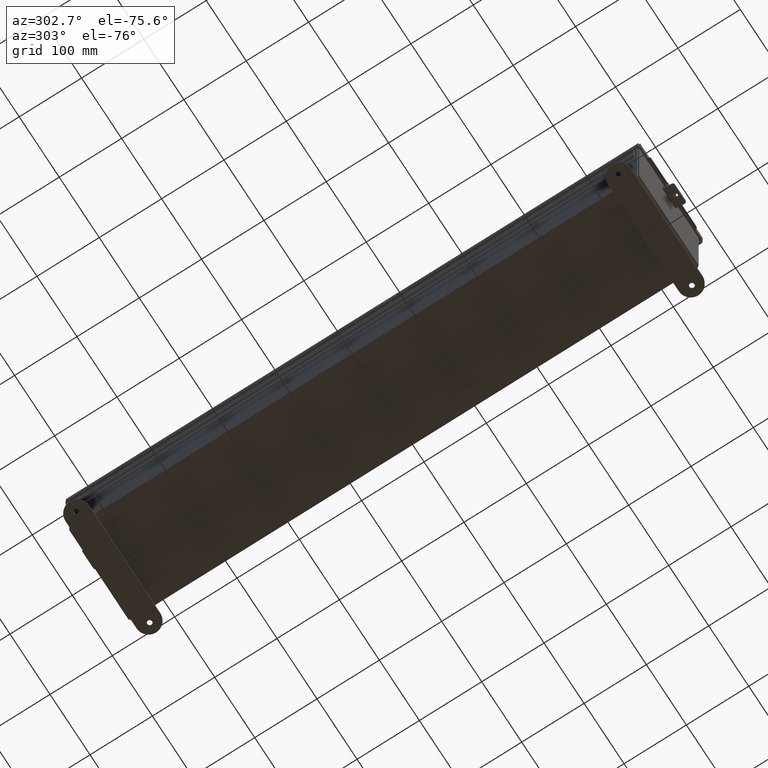
[diagram: clean part render]
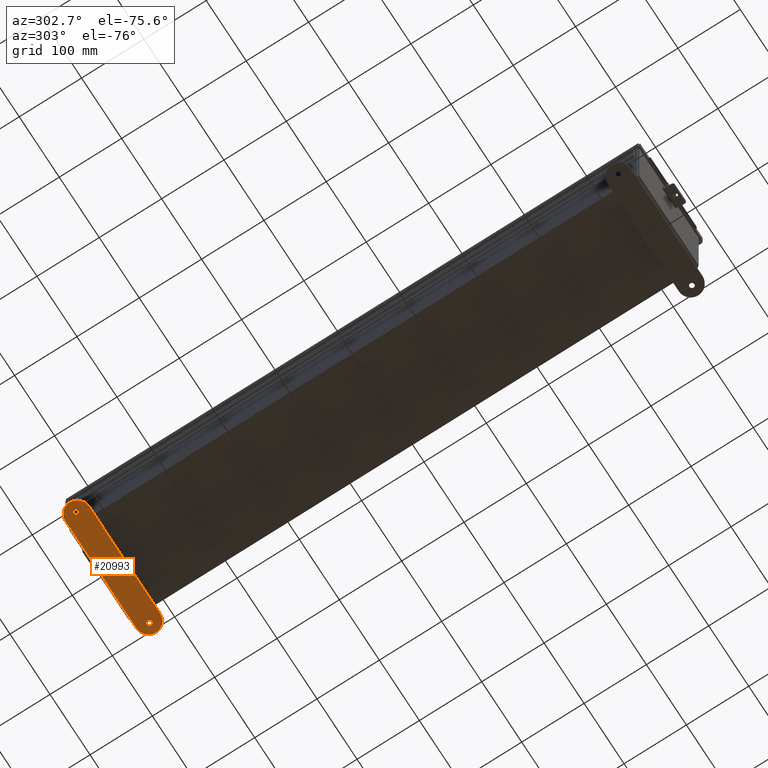
[diagram: same view with one face highlighted and labeled with its STEP entity id]
A machine part, auxiliary view. The second image highlights one B-rep face of the part: STEP entity #20993.
In plain terms, the highlighted planar face has unit normal (0, -0, 1).
Its self-contained STEP definition (entity closure, byte-faithful):
#1118 = FACE_BOUND ( 'NONE', #8639, .T. ) ;
#1271 = VERTEX_POINT ( 'NONE', #4320 ) ;
#1389 = DIRECTION ( 'NONE',  ( 0.0000000000000000000, 0.0000000000000000000, 1.000000000000000000 ) ) ;
#1828 = AXIS2_PLACEMENT_3D ( 'NONE', #19212, #5469, #21492 ) ;
#3159 = CARTESIAN_POINT ( 'NONE',  ( 4.250000000000000900, 0.4120940649496125900, 0.0000000000000000000 ) ) ;
#3248 = PLANE ( 'NONE',  #7879 ) ;
#3304 = VERTEX_POINT ( 'NONE', #16092 ) ;
#3482 = CIRCLE ( 'NONE', #28875, 0.1564999999999992800 ) ;
#3521 = VERTEX_POINT ( 'NONE', #10044 ) ;
#3673 = AXIS2_PLACEMENT_3D ( 'NONE', #15109, #1389, #17441 ) ;
#4098 = DIRECTION ( 'NONE',  ( -0.0000000000000000000, -0.0000000000000000000, -1.000000000000000000 ) ) ;
#4174 = CARTESIAN_POINT ( 'NONE',  ( 3.468500000000001000, 0.4120940649496087600, 0.0000000000000000000 ) ) ;
#4320 = CARTESIAN_POINT ( 'NONE',  ( 3.781499999999999400, 0.4120940649496087600, 0.0000000000000000000 ) ) ;
#4322 = CIRCLE ( 'NONE', #11339, 0.7500000000000010000 ) ;
#4502 = VERTEX_POINT ( 'NONE', #27375 ) ;
#5425 = DIRECTION ( 'NONE',  ( -0.0000000000000000000, -0.0000000000000000000, -1.000000000000000000 ) ) ;
#5469 = DIRECTION ( 'NONE',  ( 0.0000000000000000000, 0.0000000000000000000, 1.000000000000000000 ) ) ;
#5504 = CIRCLE ( 'NONE', #3673, 0.1564999999999992800 ) ;
#5517 = VECTOR ( 'NONE', #22483, 39.37007874015748100 ) ;
#5551 = DIRECTION ( 'NONE',  ( -1.000000000000000000, 0.0000000000000000000, 0.0000000000000000000 ) ) ;
#5639 = ORIENTED_EDGE ( 'NONE', *, *, #12676, .F. ) ;
#5656 = CIRCLE ( 'NONE', #13091, 0.7499999999999998900 ) ;
#5749 = DIRECTION ( 'NONE',  ( 0.0000000000000000000, 0.0000000000000000000, 1.000000000000000000 ) ) ;
#5916 = CARTESIAN_POINT ( 'NONE',  ( 3.500000000000000000, 0.4120940649496125900, 0.0000000000000000000 ) ) ;
#6057 = CIRCLE ( 'NONE', #10912, 0.7500000000000010000 ) ;
#6309 = VERTEX_POINT ( 'NONE', #21052 ) ;
#6803 = AXIS2_PLACEMENT_3D ( 'NONE', #17817, #4098, #20119 ) ;
#7867 = VERTEX_POINT ( 'NONE', #4174 ) ;
#7879 = AXIS2_PLACEMENT_3D ( 'NONE', #12355, #19294, #5551 ) ;
#7958 = EDGE_CURVE ( 'NONE', #3304, #6309, #29493, .T. ) ;
#8231 = DIRECTION ( 'NONE',  ( -1.000000000000000000, 0.0000000000000000000, 0.0000000000000000000 ) ) ;
#8639 = EDGE_LOOP ( 'NONE', ( #12922, #28387 ) ) ;
#9177 = DIRECTION ( 'NONE',  ( 0.0000000000000000000, 0.0000000000000000000, 1.000000000000000000 ) ) ;
#10044 = CARTESIAN_POINT ( 'NONE',  ( -3.781499999999999400, 0.4120940649496087600, 0.0000000000000000000 ) ) ;
#10128 = EDGE_CURVE ( 'NONE', #1271, #7867, #15767, .T. ) ;
#10177 = ORIENTED_EDGE ( 'NONE', *, *, #7958, .T. ) ;
#10912 = AXIS2_PLACEMENT_3D ( 'NONE', #22906, #9177, #25226 ) ;
#11339 = AXIS2_PLACEMENT_3D ( 'NONE', #5916, #21940, #8231 ) ;
#11348 = DIRECTION ( 'NONE',  ( -1.000000000000000000, -1.170791997284684700E-016, -0.0000000000000000000 ) ) ;
#11438 = ORIENTED_EDGE ( 'NONE', *, *, #21576, .T. ) ;
#12355 = CARTESIAN_POINT ( 'NONE',  ( 3.500000000000000000, 0.4120940649496125900, 0.0000000000000000000 ) ) ;
#12571 = FACE_OUTER_BOUND ( 'NONE', #28550, .T. ) ;
#12676 = EDGE_CURVE ( 'NONE', #3521, #19323, #5504, .T. ) ;
#12716 = EDGE_LOOP ( 'NONE', ( #28989, #5639 ) ) ;
#12922 = ORIENTED_EDGE ( 'NONE', *, *, #10128, .T. ) ;
#12978 = ORIENTED_EDGE ( 'NONE', *, *, #22966, .T. ) ;
#13091 = AXIS2_PLACEMENT_3D ( 'NONE', #19497, #5749, #21784 ) ;
#13250 = CARTESIAN_POINT ( 'NONE',  ( -3.499999999999998700, -0.3379059350503874600, 0.0000000000000000000 ) ) ;
#13287 = FACE_BOUND ( 'NONE', #12716, .T. ) ;
#13743 = CARTESIAN_POINT ( 'NONE',  ( -3.499999999999998700, -0.3379059350503874600, 0.0000000000000000000 ) ) ;
#15109 = CARTESIAN_POINT ( 'NONE',  ( -3.625000000000000400, 0.4120940649496087600, 0.0000000000000000000 ) ) ;
#15767 = CIRCLE ( 'NONE', #6803, 0.1564999999999992800 ) ;
#15779 = EDGE_CURVE ( 'NONE', #19323, #3521, #16437, .T. ) ;
#16092 = CARTESIAN_POINT ( 'NONE',  ( 3.499999999999998700, 1.162094064949613600, 0.0000000000000000000 ) ) ;
#16437 = CIRCLE ( 'NONE', #1828, 0.1564999999999992800 ) ;
#17441 = DIRECTION ( 'NONE',  ( 1.000000000000000000, 0.0000000000000000000, 0.0000000000000000000 ) ) ;
#17712 = LINE ( 'NONE', #13250, #5517 ) ;
#17817 = CARTESIAN_POINT ( 'NONE',  ( 3.625000000000000400, 0.4120940649496087600, 0.0000000000000000000 ) ) ;
#18021 = VECTOR ( 'NONE', #11348, 39.37007874015748100 ) ;
#18266 = CARTESIAN_POINT ( 'NONE',  ( -3.468500000000001000, 0.4120940649496087600, 0.0000000000000000000 ) ) ;
#18949 = ORIENTED_EDGE ( 'NONE', *, *, #28767, .T. ) ;
#19168 = CARTESIAN_POINT ( 'NONE',  ( 3.625000000000000400, 0.4120940649496087600, 0.0000000000000000000 ) ) ;
#19212 = CARTESIAN_POINT ( 'NONE',  ( -3.625000000000000400, 0.4120940649496087600, 0.0000000000000000000 ) ) ;
#19294 = DIRECTION ( 'NONE',  ( -0.0000000000000000000, 0.0000000000000000000, -1.000000000000000000 ) ) ;
#19323 = VERTEX_POINT ( 'NONE', #18266 ) ;
#19497 = CARTESIAN_POINT ( 'NONE',  ( -3.499999999999998700, 0.4120940649496127000, 0.0000000000000000000 ) ) ;
#20119 = DIRECTION ( 'NONE',  ( -1.000000000000000000, 0.0000000000000000000, 0.0000000000000000000 ) ) ;
#20993 = ADVANCED_FACE ( 'NONE', ( #12571, #13287, #1118 ), #3248, .F. ) ;
#21052 = CARTESIAN_POINT ( 'NONE',  ( -3.499999999999998700, 1.162094064949613000, 0.0000000000000000000 ) ) ;
#21457 = DIRECTION ( 'NONE',  ( -1.000000000000000000, 0.0000000000000000000, 0.0000000000000000000 ) ) ;
#21492 = DIRECTION ( 'NONE',  ( 1.000000000000000000, 0.0000000000000000000, 0.0000000000000000000 ) ) ;
#21576 = EDGE_CURVE ( 'NONE', #4502, #26051, #4322, .T. ) ;
#21784 = DIRECTION ( 'NONE',  ( 1.000000000000000000, 0.0000000000000000000, 0.0000000000000000000 ) ) ;
#21940 = DIRECTION ( 'NONE',  ( 0.0000000000000000000, 0.0000000000000000000, 1.000000000000000000 ) ) ;
#22483 = DIRECTION ( 'NONE',  ( 1.000000000000000000, -1.170791997284684700E-016, 0.0000000000000000000 ) ) ;
#22788 = CARTESIAN_POINT ( 'NONE',  ( -3.499999999999998700, 1.162094064949613000, 0.0000000000000000000 ) ) ;
#22906 = CARTESIAN_POINT ( 'NONE',  ( 3.500000000000000000, 0.4120940649496125900, 0.0000000000000000000 ) ) ;
#22966 = EDGE_CURVE ( 'NONE', #6309, #28125, #5656, .T. ) ;
#23512 = EDGE_CURVE ( 'NONE', #7867, #1271, #3482, .T. ) ;
#25226 = DIRECTION ( 'NONE',  ( -1.000000000000000000, 0.0000000000000000000, 0.0000000000000000000 ) ) ;
#25814 = EDGE_CURVE ( 'NONE', #26051, #3304, #6057, .T. ) ;
#26051 = VERTEX_POINT ( 'NONE', #3159 ) ;
#27050 = ORIENTED_EDGE ( 'NONE', *, *, #25814, .T. ) ;
#27375 = CARTESIAN_POINT ( 'NONE',  ( 3.499999999999998700, -0.3379059350503883000, 0.0000000000000000000 ) ) ;
#28125 = VERTEX_POINT ( 'NONE', #13743 ) ;
#28387 = ORIENTED_EDGE ( 'NONE', *, *, #23512, .T. ) ;
#28550 = EDGE_LOOP ( 'NONE', ( #11438, #27050, #10177, #12978, #18949 ) ) ;
#28767 = EDGE_CURVE ( 'NONE', #28125, #4502, #17712, .T. ) ;
#28875 = AXIS2_PLACEMENT_3D ( 'NONE', #19168, #5425, #21457 ) ;
#28989 = ORIENTED_EDGE ( 'NONE', *, *, #15779, .F. ) ;
#29493 = LINE ( 'NONE', #22788, #18021 ) ;